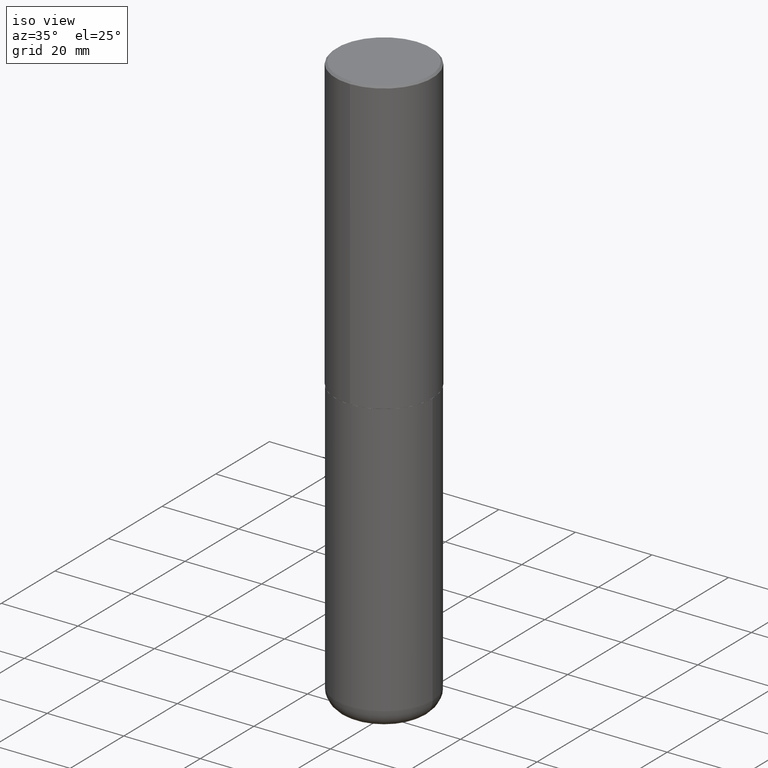
[diagram: clean part render]
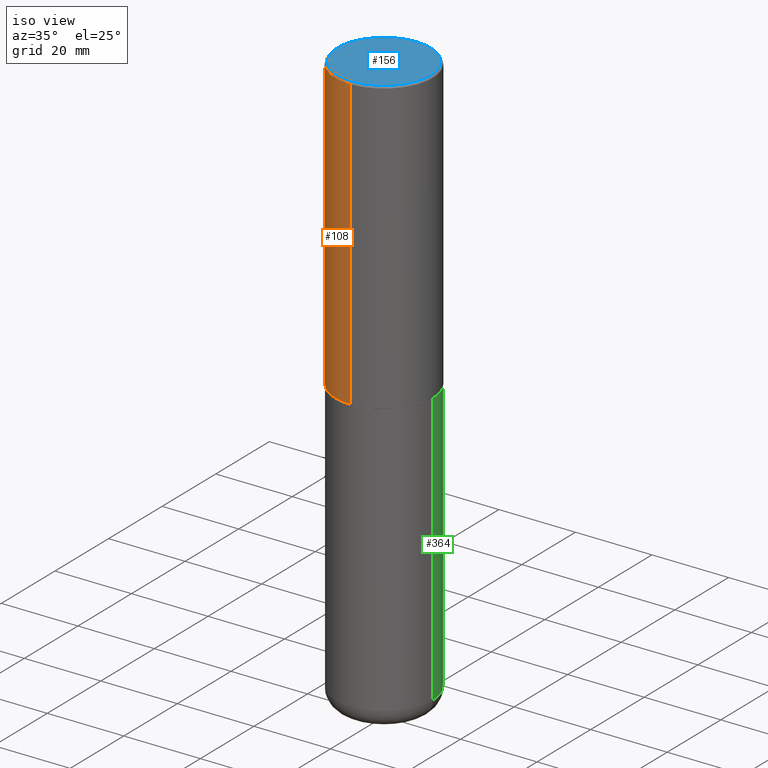
[diagram: same view with three faces highlighted in distinct colors, each labeled with its STEP entity id]
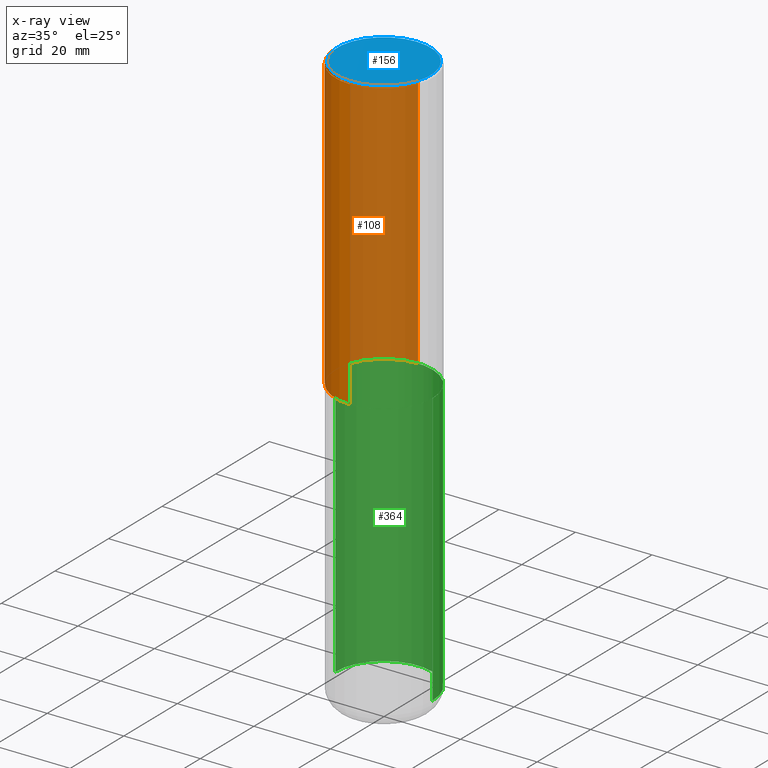
[diagram: x-ray of the same camera — body ghosted, the three highlighted faces saturated]
A machine part, iso view with three faces highlighted in distinct colors.
The next image is the same camera in x-ray (body ghosted, the three faces saturated) — at least one of them is partly hidden behind the body in this view.
Their STEP definitions:

[orange] entity #108 — the highlighted cylindrical surface (partial cylindrical patch) has radius 12.7 mm, axis along (-0, 0, 1).
#4 = VECTOR ( 'NONE', #203, 39.37007874015748143 ) ;
#13 = VERTEX_POINT ( 'NONE', #49 ) ;
#14 = CARTESIAN_POINT ( 'NONE',  ( 3.552713678800501718E-15, 0.5000000000000001110, -1.746149358764313390E-15 ) ) ;
#19 = ORIENTED_EDGE ( 'NONE', *, *, #272, .T. ) ;
#35 = CARTESIAN_POINT ( 'NONE',  ( -3.491481338843133750E-15, -0.5000000000000001110, 1.746149358764313390E-15 ) ) ;
#38 = CARTESIAN_POINT ( 'NONE',  ( 7.332249203065438921E-29, -1.047340385386834930E-14, -2.999000000000000554 ) ) ;
#49 = CARTESIAN_POINT ( 'NONE',  ( 3.552713678800539584E-15, 0.4999999999999898970, -2.999000000000001886 ) ) ;
#67 = EDGE_LOOP ( 'NONE', ( #168, #201, #19, #322 ) ) ;
#73 = LINE ( 'NONE', #14, #4 ) ;
#79 = DIRECTION ( 'NONE',  ( -6.982962677686265922E-15, -1.000000000000000000, 3.492298717528625990E-15 ) ) ;
#92 = AXIS2_PLACEMENT_3D ( 'NONE', #38, #134, #103 ) ;
#103 = DIRECTION ( 'NONE',  ( -6.982962677686266711E-15, -1.000000000000000000, 3.278217592397114284E-15 ) ) ;
#108 = ADVANCED_FACE ( 'NONE', ( #210 ), #369, .T. ) ;
#109 = CARTESIAN_POINT ( 'NONE',  ( 3.491481338843133355E-15, 0.4999999999999999445, -0.02000000000000185310 ) ) ;
#134 = DIRECTION ( 'NONE',  ( -2.444898033699712212E-29, 3.492298717528625990E-15, 1.000000000000000000 ) ) ;
#145 = CIRCLE ( 'NONE', #92, 0.5000000000000002220 ) ;
#146 = VERTEX_POINT ( 'NONE', #109 ) ;
#147 = DIRECTION ( 'NONE',  ( -2.444898033699712212E-29, 3.492298717528625990E-15, 1.000000000000000000 ) ) ;
#148 = AXIS2_PLACEMENT_3D ( 'NONE', #243, #173, #79 ) ;
#168 = ORIENTED_EDGE ( 'NONE', *, *, #342, .F. ) ;
#173 = DIRECTION ( 'NONE',  ( -2.444898033699712212E-29, 3.492298717528625990E-15, 1.000000000000000000 ) ) ;
#185 = EDGE_CURVE ( 'NONE', #146, #319, #231, .T. ) ;
#193 = LINE ( 'NONE', #35, #310 ) ;
#201 = ORIENTED_EDGE ( 'NONE', *, *, #348, .T. ) ;
#203 = DIRECTION ( 'NONE',  ( -2.444898033699711931E-29, 3.492298717528626385E-15, 1.000000000000000000 ) ) ;
#210 = FACE_OUTER_BOUND ( 'NONE', #67, .T. ) ;
#215 = DIRECTION ( 'NONE',  ( -2.444898033699711931E-29, 3.492298717528626385E-15, 1.000000000000000000 ) ) ;
#220 = DIRECTION ( 'NONE',  ( -6.982962677686265922E-15, -1.000000000000000000, 3.491643216902136408E-15 ) ) ;
#231 = CIRCLE ( 'NONE', #257, 0.5000000000000000000 ) ;
#243 = CARTESIAN_POINT ( 'NONE',  ( 0.000000000000000000, 0.000000000000000000, 0.000000000000000000 ) ) ;
#257 = AXIS2_PLACEMENT_3D ( 'NONE', #308, #147, #220 ) ;
#268 = CARTESIAN_POINT ( 'NONE',  ( -3.491481338843061569E-15, -0.5000000000000107692, -2.998999999999998778 ) ) ;
#272 = EDGE_CURVE ( 'NONE', #352, #319, #193, .T. ) ;
#308 = CARTESIAN_POINT ( 'NONE',  ( 4.889796067399450837E-31, -6.984597435057287381E-17, -0.02000000000000010797 ) ) ;
#310 = VECTOR ( 'NONE', #215, 39.37007874015748143 ) ;
#319 = VERTEX_POINT ( 'NONE', #347 ) ;
#322 = ORIENTED_EDGE ( 'NONE', *, *, #185, .F. ) ;
#342 = EDGE_CURVE ( 'NONE', #13, #146, #73, .T. ) ;
#347 = CARTESIAN_POINT ( 'NONE',  ( -3.430248998885764992E-15, -0.5000000000000001110, -0.01999999999999835937 ) ) ;
#348 = EDGE_CURVE ( 'NONE', #13, #352, #145, .T. ) ;
#352 = VERTEX_POINT ( 'NONE', #268 ) ;
#369 = CYLINDRICAL_SURFACE ( 'NONE', #148, 0.5000000000000001110 ) ;

[blue] entity #156 — the highlighted planar face has unit normal (0, -0, -1).
#21 = AXIS2_PLACEMENT_3D ( 'NONE', #80, #306, #43 ) ;
#36 = EDGE_LOOP ( 'NONE', ( #394, #204 ) ) ;
#43 = DIRECTION ( 'NONE',  ( 6.982962677686265922E-15, 1.000000000000000000, -3.492298717528626385E-15 ) ) ;
#69 = CARTESIAN_POINT ( 'NONE',  ( 3.421651712066270057E-15, 0.4799999999999999267, -1.573466742882299844E-15 ) ) ;
#80 = CARTESIAN_POINT ( 'NONE',  ( 3.351822085289407153E-15, 0.4799999999999999267, -1.624885063648019971E-15 ) ) ;
#84 = CIRCLE ( 'NONE', #189, 0.4799999999999999267 ) ;
#107 = DIRECTION ( 'NONE',  ( -2.444898033699712212E-29, 3.492298717528625990E-15, 1.000000000000000000 ) ) ;
#130 = AXIS2_PLACEMENT_3D ( 'NONE', #400, #107, #392 ) ;
#156 = ADVANCED_FACE ( 'NONE', ( #336 ), #238, .F. ) ;
#158 = VERTEX_POINT ( 'NONE', #169 ) ;
#160 = DIRECTION ( 'NONE',  ( -6.982962677686265922E-15, -1.000000000000000000, 3.492298717528625990E-15 ) ) ;
#169 = CARTESIAN_POINT ( 'NONE',  ( -3.361644018908049661E-15, -0.4799999999999999267, 1.779140025945180744E-15 ) ) ;
#189 = AXIS2_PLACEMENT_3D ( 'NONE', #413, #224, #160 ) ;
#204 = ORIENTED_EDGE ( 'NONE', *, *, #407, .T. ) ;
#224 = DIRECTION ( 'NONE',  ( -2.444898033699712212E-29, 3.492298717528625990E-15, 1.000000000000000000 ) ) ;
#233 = CIRCLE ( 'NONE', #130, 0.4799999999999999267 ) ;
#238 = PLANE ( 'NONE',  #21 ) ;
#306 = DIRECTION ( 'NONE',  ( 2.444898033699711371E-29, -3.492298717528626385E-15, -1.000000000000000000 ) ) ;
#309 = EDGE_CURVE ( 'NONE', #389, #158, #84, .T. ) ;
#336 = FACE_OUTER_BOUND ( 'NONE', #36, .T. ) ;
#389 = VERTEX_POINT ( 'NONE', #69 ) ;
#392 = DIRECTION ( 'NONE',  ( -6.982962677686265922E-15, -1.000000000000000000, 3.492298717528625990E-15 ) ) ;
#394 = ORIENTED_EDGE ( 'NONE', *, *, #309, .T. ) ;
#400 = CARTESIAN_POINT ( 'NONE',  ( -2.514251026725007597E-45, 3.591362713352002573E-31, 1.028366415314403880E-16 ) ) ;
#407 = EDGE_CURVE ( 'NONE', #158, #389, #233, .T. ) ;
#413 = CARTESIAN_POINT ( 'NONE',  ( -2.514251026725007597E-45, 3.591362713352002573E-31, 1.028366415314403880E-16 ) ) ;

[green] entity #364 — the highlighted cylindrical surface (partial cylindrical patch) has radius 12.7 mm, axis along (-0, 0, 1).
#8 = FACE_OUTER_BOUND ( 'NONE', #287, .T. ) ;
#15 = CARTESIAN_POINT ( 'NONE',  ( -0.5000000000000000000, -1.673279289987817518E-14, -5.810000000000000497 ) ) ;
#39 = VERTEX_POINT ( 'NONE', #333 ) ;
#44 = CARTESIAN_POINT ( 'NONE',  ( 7.336406418555409790E-29, -1.047444401652943635E-14, -3.000000000000000444 ) ) ;
#50 = CIRCLE ( 'NONE', #280, 0.5000000000000000000 ) ;
#54 = DIRECTION ( 'NONE',  ( 1.000000000000000000, -6.982962677686270655E-15, 0.000000000000000000 ) ) ;
#74 = ORIENTED_EDGE ( 'NONE', *, *, #229, .T. ) ;
#85 = DIRECTION ( 'NONE',  ( -2.445468806185136597E-29, 3.491481338843145583E-15, 1.000000000000000000 ) ) ;
#101 = EDGE_CURVE ( 'NONE', #113, #227, #274, .T. ) ;
#105 = DIRECTION ( 'NONE',  ( 1.000000000000000000, -6.982962677686266711E-15, 4.876176775795935793E-29 ) ) ;
#113 = VERTEX_POINT ( 'NONE', #15 ) ;
#117 = EDGE_CURVE ( 'NONE', #291, #39, #271, .T. ) ;
#149 = AXIS2_PLACEMENT_3D ( 'NONE', #44, #172, #302 ) ;
#166 = DIRECTION ( 'NONE',  ( -2.445468806185136597E-29, 3.491481338843145583E-15, 1.000000000000000000 ) ) ;
#172 = DIRECTION ( 'NONE',  ( -2.445468806185136597E-29, 3.491481338843145583E-15, 1.000000000000000000 ) ) ;
#175 = ORIENTED_EDGE ( 'NONE', *, *, #390, .F. ) ;
#176 = DIRECTION ( 'NONE',  ( -2.445468806185136877E-29, 3.491481338843145188E-15, 1.000000000000000000 ) ) ;
#181 = CIRCLE ( 'NONE', #149, 0.5000000000000000000 ) ;
#211 = CARTESIAN_POINT ( 'NONE',  ( -0.5000000000000000000, 3.552713678800500929E-15, -2.459467545127452891E-29 ) ) ;
#227 = VERTEX_POINT ( 'NONE', #377 ) ;
#229 = EDGE_CURVE ( 'NONE', #291, #113, #50, .T. ) ;
#262 = ORIENTED_EDGE ( 'NONE', *, *, #101, .T. ) ;
#264 = CARTESIAN_POINT ( 'NONE',  ( 0.000000000000000000, 0.000000000000000000, 0.000000000000000000 ) ) ;
#271 = LINE ( 'NONE', #330, #384 ) ;
#274 = LINE ( 'NONE', #211, #332 ) ;
#280 = AXIS2_PLACEMENT_3D ( 'NONE', #380, #85, #54 ) ;
#281 = CARTESIAN_POINT ( 'NONE',  ( 0.5000000000000000000, -2.377698791752181577E-14, -5.810000000000000497 ) ) ;
#287 = EDGE_LOOP ( 'NONE', ( #74, #262, #175, #365 ) ) ;
#290 = AXIS2_PLACEMENT_3D ( 'NONE', #264, #166, #105 ) ;
#291 = VERTEX_POINT ( 'NONE', #281 ) ;
#302 = DIRECTION ( 'NONE',  ( 1.000000000000000000, -6.982962677686266711E-15, 0.000000000000000000 ) ) ;
#330 = CARTESIAN_POINT ( 'NONE',  ( 0.5000000000000000000, -3.491481338843133355E-15, 2.438088387897967896E-29 ) ) ;
#332 = VECTOR ( 'NONE', #176, 39.37007874015748143 ) ;
#333 = CARTESIAN_POINT ( 'NONE',  ( 0.5000000000000000000, -1.396592535537257129E-14, -3.000000000000000444 ) ) ;
#364 = ADVANCED_FACE ( 'NONE', ( #8 ), #398, .T. ) ;
#365 = ORIENTED_EDGE ( 'NONE', *, *, #117, .F. ) ;
#377 = CARTESIAN_POINT ( 'NONE',  ( -0.5000000000000000000, -1.182726161880355609E-14, -3.000000000000000444 ) ) ;
#380 = CARTESIAN_POINT ( 'NONE',  ( 1.420817376393564695E-28, -2.028550657867867926E-14, -5.810000000000000497 ) ) ;
#384 = VECTOR ( 'NONE', #402, 39.37007874015748143 ) ;
#390 = EDGE_CURVE ( 'NONE', #39, #227, #181, .T. ) ;
#398 = CYLINDRICAL_SURFACE ( 'NONE', #290, 0.5000000000000000000 ) ;
#402 = DIRECTION ( 'NONE',  ( -2.445468806185136877E-29, 3.491481338843145188E-15, 1.000000000000000000 ) ) ;